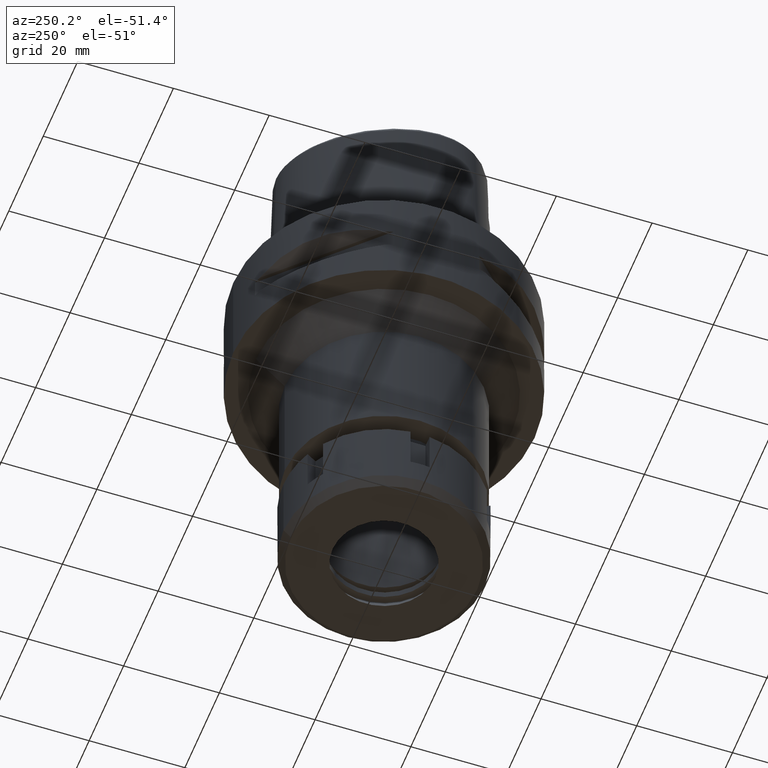
[diagram: clean part render]
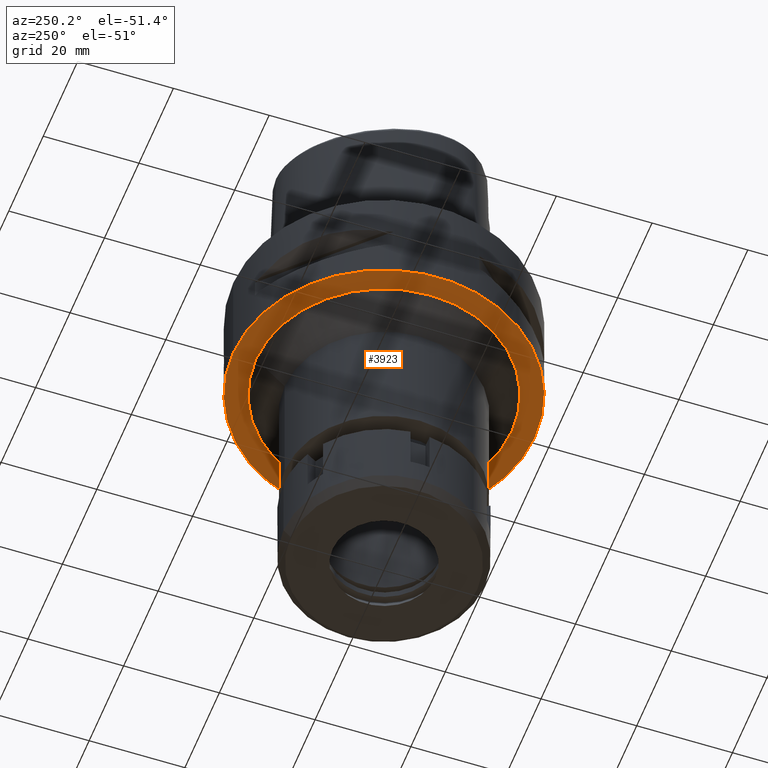
[diagram: same view with one face highlighted and labeled with its STEP entity id]
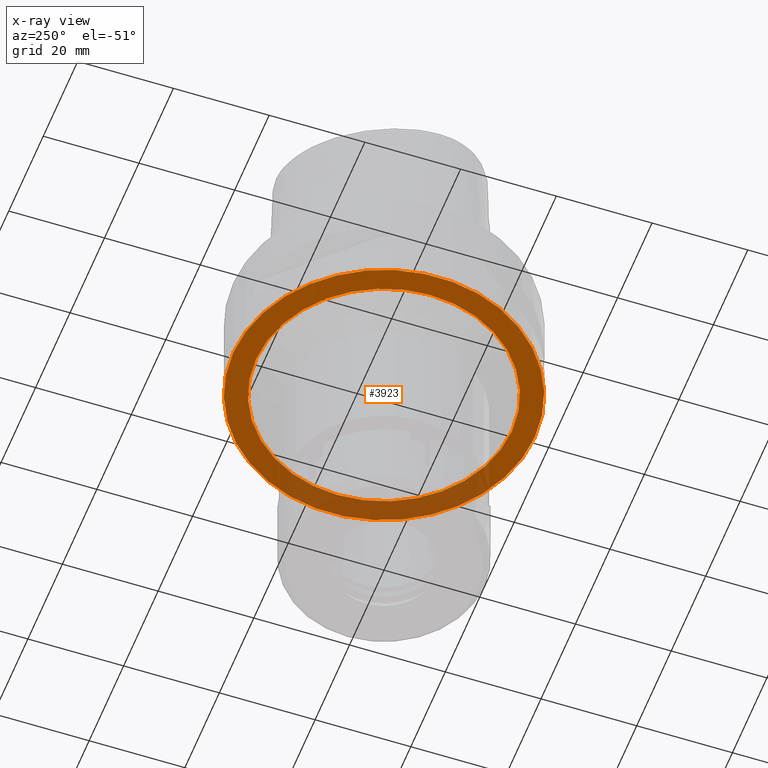
[diagram: x-ray of the same camera — body ghosted, the highlighted face saturated]
A machine part, auxiliary view. The second image highlights one B-rep face of the part: STEP entity #3923.
The next image is the same camera in x-ray: the body ghosted, the highlighted face saturated — about 25% of this face is hidden behind the body in this view.
In plain terms, the highlighted planar face has unit normal (0, 0, -1).
Its self-contained STEP definition (entity closure, byte-faithful):
#70 = CARTESIAN_POINT ( 'NONE',  ( 0.0000000000000000000, 0.0000000000000000000, -22.00000000000000000 ) ) ;
#105 = AXIS2_PLACEMENT_3D ( 'NONE', #1067, #2766, #2705 ) ;
#296 = VERTEX_POINT ( 'NONE', #4621 ) ;
#415 = CIRCLE ( 'NONE', #1114, 31.50000000000000000 ) ;
#456 = CARTESIAN_POINT ( 'NONE',  ( 0.0000000000000000000, 26.75000000000000000, -22.00000000000000000 ) ) ;
#462 = DIRECTION ( 'NONE',  ( 0.0000000000000000000, 0.0000000000000000000, -1.000000000000000000 ) ) ;
#511 = ORIENTED_EDGE ( 'NONE', *, *, #1984, .F. ) ;
#652 = CARTESIAN_POINT ( 'NONE',  ( 0.0000000000000000000, -31.50000000000000000, -22.00000000000000000 ) ) ;
#1067 = CARTESIAN_POINT ( 'NONE',  ( 0.0000000000000000000, 1.265672466918999865E-14, -22.00000000000000000 ) ) ;
#1094 = DIRECTION ( 'NONE',  ( 0.0000000000000000000, -1.000000000000000000, 0.0000000000000000000 ) ) ;
#1114 = AXIS2_PLACEMENT_3D ( 'NONE', #2393, #5299, #1564 ) ;
#1250 = EDGE_LOOP ( 'NONE', ( #1951, #1281 ) ) ;
#1281 = ORIENTED_EDGE ( 'NONE', *, *, #3613, .F. ) ;
#1564 = DIRECTION ( 'NONE',  ( 0.0000000000000000000, -1.000000000000000000, 0.0000000000000000000 ) ) ;
#1699 = CIRCLE ( 'NONE', #105, 31.50000000000000000 ) ;
#1721 = DIRECTION ( 'NONE',  ( 0.0000000000000000000, 1.000000000000000000, 0.0000000000000000000 ) ) ;
#1933 = PLANE ( 'NONE',  #2455 ) ;
#1940 = ORIENTED_EDGE ( 'NONE', *, *, #4465, .F. ) ;
#1951 = ORIENTED_EDGE ( 'NONE', *, *, #4728, .F. ) ;
#1984 = EDGE_CURVE ( 'NONE', #296, #2192, #1699, .T. ) ;
#2178 = EDGE_LOOP ( 'NONE', ( #511, #1940 ) ) ;
#2192 = VERTEX_POINT ( 'NONE', #652 ) ;
#2393 = CARTESIAN_POINT ( 'NONE',  ( 0.0000000000000000000, 1.265672466918999865E-14, -22.00000000000000000 ) ) ;
#2455 = AXIS2_PLACEMENT_3D ( 'NONE', #3299, #4149, #1094 ) ;
#2522 = DIRECTION ( 'NONE',  ( 0.0000000000000000000, -1.000000000000000000, 0.0000000000000000000 ) ) ;
#2705 = DIRECTION ( 'NONE',  ( 0.0000000000000000000, 1.000000000000000000, 0.0000000000000000000 ) ) ;
#2766 = DIRECTION ( 'NONE',  ( 0.0000000000000000000, 0.0000000000000000000, 1.000000000000000000 ) ) ;
#2949 = CARTESIAN_POINT ( 'NONE',  ( 0.0000000000000000000, 0.0000000000000000000, -22.00000000000000000 ) ) ;
#3001 = DIRECTION ( 'NONE',  ( 0.0000000000000000000, 0.0000000000000000000, -1.000000000000000000 ) ) ;
#3299 = CARTESIAN_POINT ( 'NONE',  ( 0.0000000000000000000, 0.0000000000000000000, -22.00000000000000000 ) ) ;
#3613 = EDGE_CURVE ( 'NONE', #4380, #4058, #4467, .T. ) ;
#3658 = FACE_BOUND ( 'NONE', #1250, .T. ) ;
#3687 = CIRCLE ( 'NONE', #4982, 26.75000000000000000 ) ;
#3923 = ADVANCED_FACE ( 'NONE', ( #4031, #3658 ), #1933, .T. ) ;
#4031 = FACE_OUTER_BOUND ( 'NONE', #2178, .T. ) ;
#4058 = VERTEX_POINT ( 'NONE', #456 ) ;
#4149 = DIRECTION ( 'NONE',  ( 0.0000000000000000000, 0.0000000000000000000, -1.000000000000000000 ) ) ;
#4380 = VERTEX_POINT ( 'NONE', #5271 ) ;
#4465 = EDGE_CURVE ( 'NONE', #2192, #296, #415, .T. ) ;
#4467 = CIRCLE ( 'NONE', #4562, 26.75000000000000000 ) ;
#4562 = AXIS2_PLACEMENT_3D ( 'NONE', #70, #462, #2522 ) ;
#4621 = CARTESIAN_POINT ( 'NONE',  ( 0.0000000000000000000, 31.50000000000000000, -22.00000000000000000 ) ) ;
#4728 = EDGE_CURVE ( 'NONE', #4058, #4380, #3687, .T. ) ;
#4982 = AXIS2_PLACEMENT_3D ( 'NONE', #2949, #3001, #1721 ) ;
#5271 = CARTESIAN_POINT ( 'NONE',  ( 0.0000000000000000000, -26.75000000000000000, -22.00000000000000000 ) ) ;
#5299 = DIRECTION ( 'NONE',  ( 0.0000000000000000000, 0.0000000000000000000, 1.000000000000000000 ) ) ;